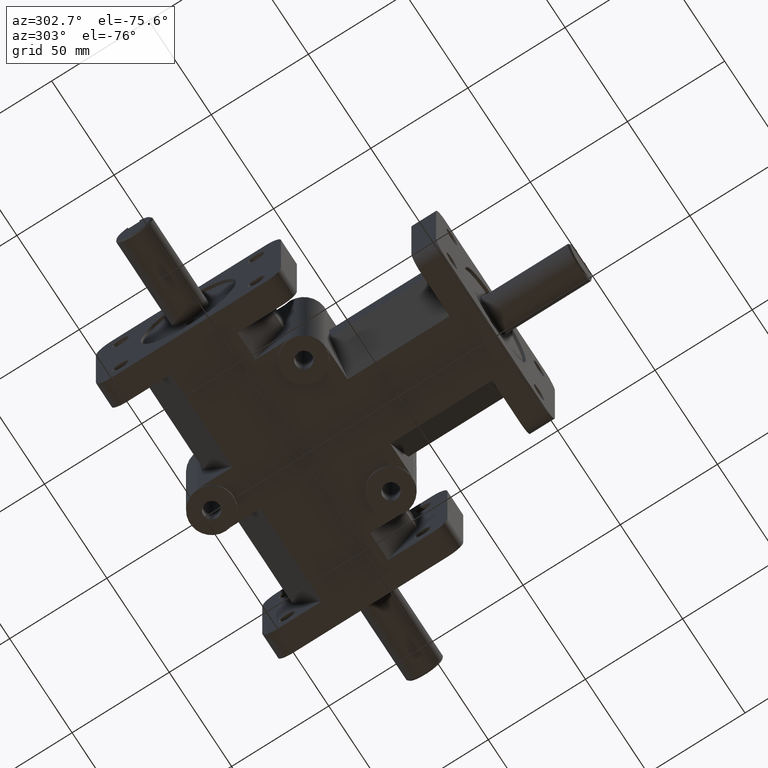
[diagram: clean part render]
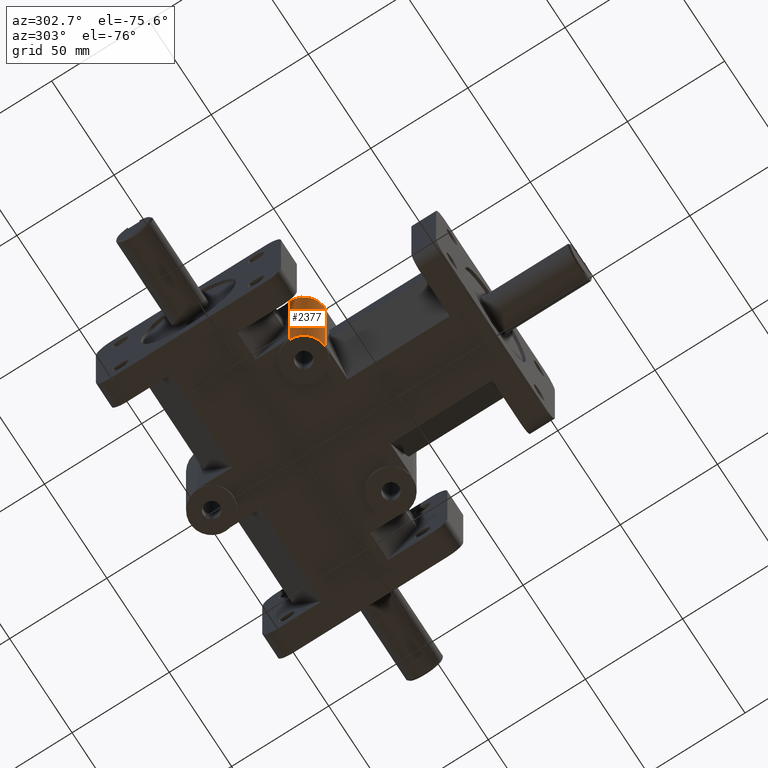
[diagram: same view with one face highlighted and labeled with its STEP entity id]
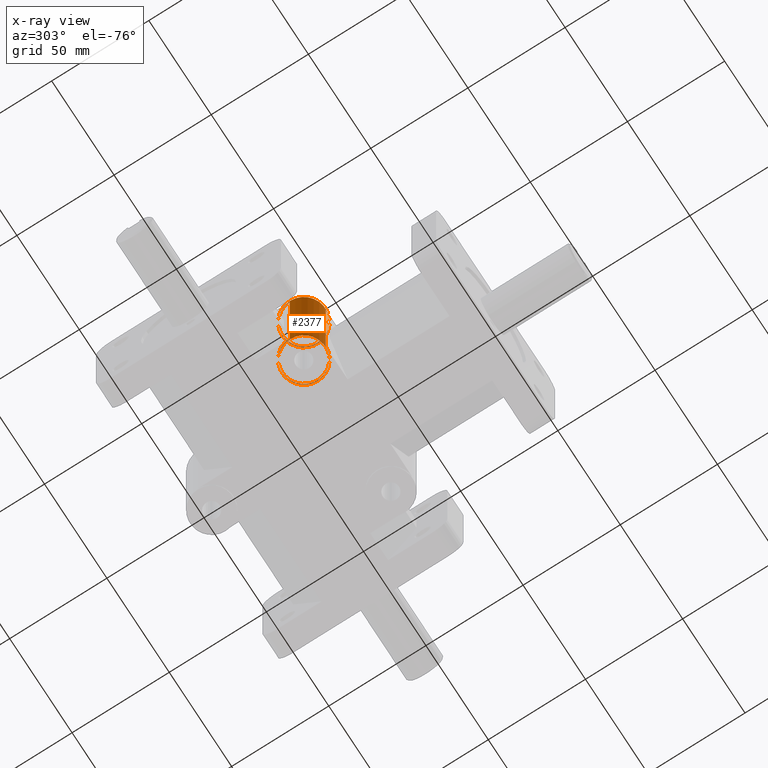
[diagram: x-ray of the same camera — body ghosted, the highlighted face saturated]
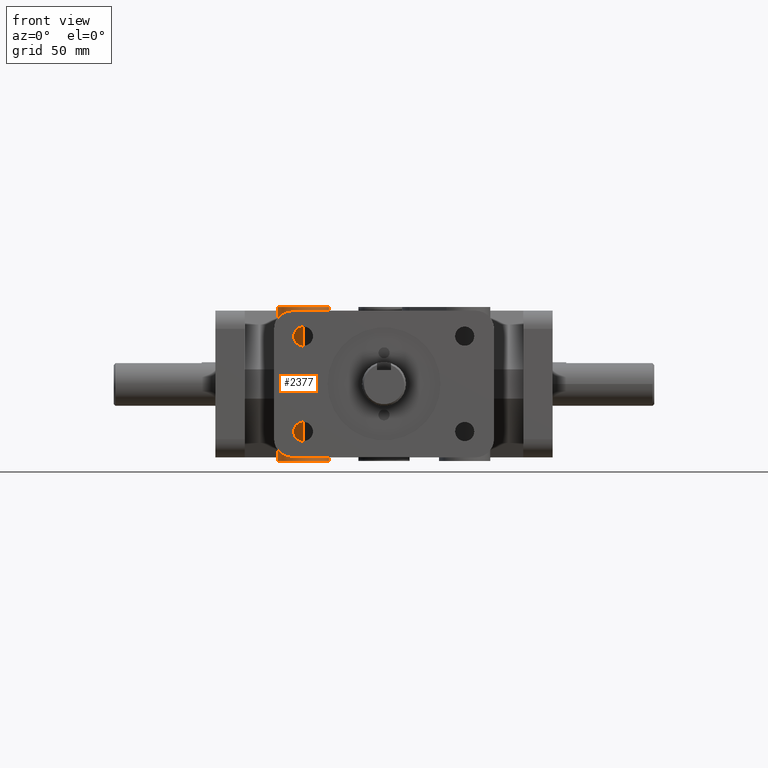
[diagram: same view with one face highlighted and labeled with its STEP entity id]
A machine part, auxiliary view. The second image highlights one B-rep face of the part: STEP entity #2377.
The next image is the same camera in x-ray: the body ghosted, the highlighted face saturated — about 3% of this face is hidden behind the body in this view.
A second angle (front view) of the same face is appended — the face is thin or edge-on in the first view.
In plain terms, the highlighted cylindrical surface (bore or boss wall) has radius 11.1125 mm, axis along (0, 0, -1).
Its self-contained STEP definition (entity closure, byte-faithful):
#258=FACE_OUTER_BOUND('',#422,.T.);
#422=EDGE_LOOP('',(#2126,#2127,#2128,#2129,#2130,#2131,#2132,#2133,#2134,
#2135));
#661=LINE('',#4004,#883);
#662=LINE('',#4006,#884);
#663=LINE('',#4007,#885);
#664=LINE('',#4008,#886);
#883=VECTOR('',#3286,1.);
#884=VECTOR('',#3289,11.1125);
#885=VECTOR('',#3290,1.);
#886=VECTOR('',#3291,11.1125);
#965=CIRCLE('',#2531,11.1125);
#968=CIRCLE('',#2535,11.1125);
#995=CIRCLE('',#2588,11.1125);
#996=CIRCLE('',#2590,11.1125);
#1134=VERTEX_POINT('',#3707);
#1135=VERTEX_POINT('',#3709);
#1148=VERTEX_POINT('',#3741);
#1149=VERTEX_POINT('',#3743);
#1196=VERTEX_POINT('',#3889);
#1197=VERTEX_POINT('',#3892);
#1395=EDGE_CURVE('',#1134,#1135,#965,.T.);
#1414=EDGE_CURVE('',#1148,#1149,#968,.T.);
#1487=EDGE_CURVE('',#1196,#1196,#995,.T.);
#1488=EDGE_CURVE('',#1197,#1197,#996,.T.);
#1544=EDGE_CURVE('',#1148,#1135,#661,.T.);
#1545=EDGE_CURVE('',#1197,#1135,#662,.T.);
#1546=EDGE_CURVE('',#1149,#1134,#663,.T.);
#1547=EDGE_CURVE('',#1148,#1196,#664,.T.);
#2126=ORIENTED_EDGE('',*,*,#1488,.T.);
#2127=ORIENTED_EDGE('',*,*,#1545,.T.);
#2128=ORIENTED_EDGE('',*,*,#1395,.F.);
#2129=ORIENTED_EDGE('',*,*,#1546,.F.);
#2130=ORIENTED_EDGE('',*,*,#1414,.F.);
#2131=ORIENTED_EDGE('',*,*,#1547,.T.);
#2132=ORIENTED_EDGE('',*,*,#1487,.T.);
#2133=ORIENTED_EDGE('',*,*,#1547,.F.);
#2134=ORIENTED_EDGE('',*,*,#1544,.T.);
#2135=ORIENTED_EDGE('',*,*,#1545,.F.);
#2268=CYLINDRICAL_SURFACE('',#2626,11.1125);
#2377=ADVANCED_FACE('',(#258),#2268,.T.);
#2531=AXIS2_PLACEMENT_3D('',#3710,#2984,#2985);
#2535=AXIS2_PLACEMENT_3D('',#3744,#3008,#3009);
#2588=AXIS2_PLACEMENT_3D('',#3890,#3160,#3161);
#2590=AXIS2_PLACEMENT_3D('',#3893,#3164,#3165);
#2626=AXIS2_PLACEMENT_3D('',#4005,#3287,#3288);
#2984=DIRECTION('center_axis',(0.,0.,1.));
#2985=DIRECTION('ref_axis',(1.,0.,0.));
#3008=DIRECTION('center_axis',(0.,0.,-1.));
#3009=DIRECTION('ref_axis',(1.,0.,0.));
#3160=DIRECTION('center_axis',(0.,0.,-1.));
#3161=DIRECTION('ref_axis',(1.,0.,0.));
#3164=DIRECTION('center_axis',(0.,0.,1.));
#3165=DIRECTION('ref_axis',(1.,0.,0.));
#3286=DIRECTION('',(0.,0.,-1.));
#3287=DIRECTION('center_axis',(0.,0.,-1.));
#3288=DIRECTION('ref_axis',(1.,0.,0.));
#3289=DIRECTION('',(0.,0.,1.));
#3290=DIRECTION('',(0.,0.,-1.));
#3291=DIRECTION('',(0.,0.,1.));
#3707=CARTESIAN_POINT('',(-34.925,65.0875,-31.75));
#3709=CARTESIAN_POINT('',(-46.0375,76.2,-31.75));
#3710=CARTESIAN_POINT('Origin',(-34.925,76.2,-31.75));
#3741=CARTESIAN_POINT('',(-46.0375,76.2,31.75));
#3743=CARTESIAN_POINT('',(-34.925,65.0875,31.75));
#3744=CARTESIAN_POINT('Origin',(-34.925,76.2,31.75));
#3889=CARTESIAN_POINT('',(-46.0375,76.2,33.3375));
#3890=CARTESIAN_POINT('Origin',(-34.925,76.2,33.3375));
#3892=CARTESIAN_POINT('',(-46.0375,76.2,-33.3375));
#3893=CARTESIAN_POINT('Origin',(-34.925,76.2,-33.3375));
#4004=CARTESIAN_POINT('',(-46.0375,76.2,0.));
#4005=CARTESIAN_POINT('Origin',(-34.925,76.2,0.));
#4006=CARTESIAN_POINT('',(-46.0375,76.2,0.));
#4007=CARTESIAN_POINT('',(-34.925,65.0875,0.));
#4008=CARTESIAN_POINT('',(-46.0375,76.2,0.));